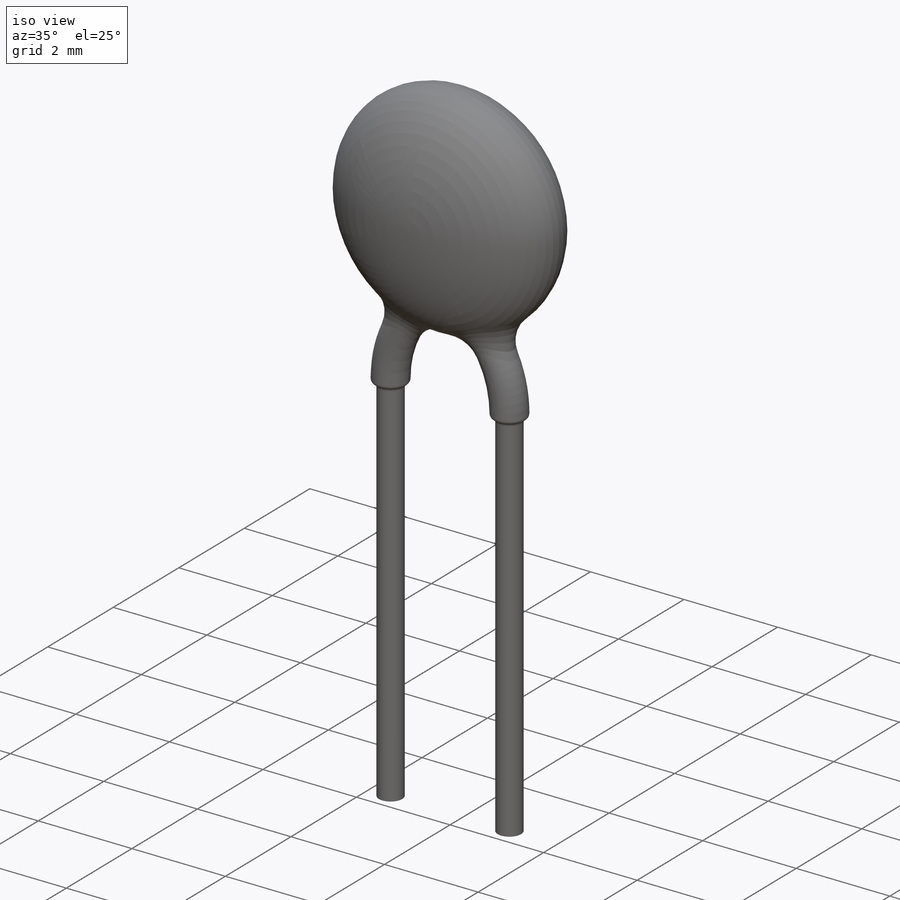
[diagram: iso view]
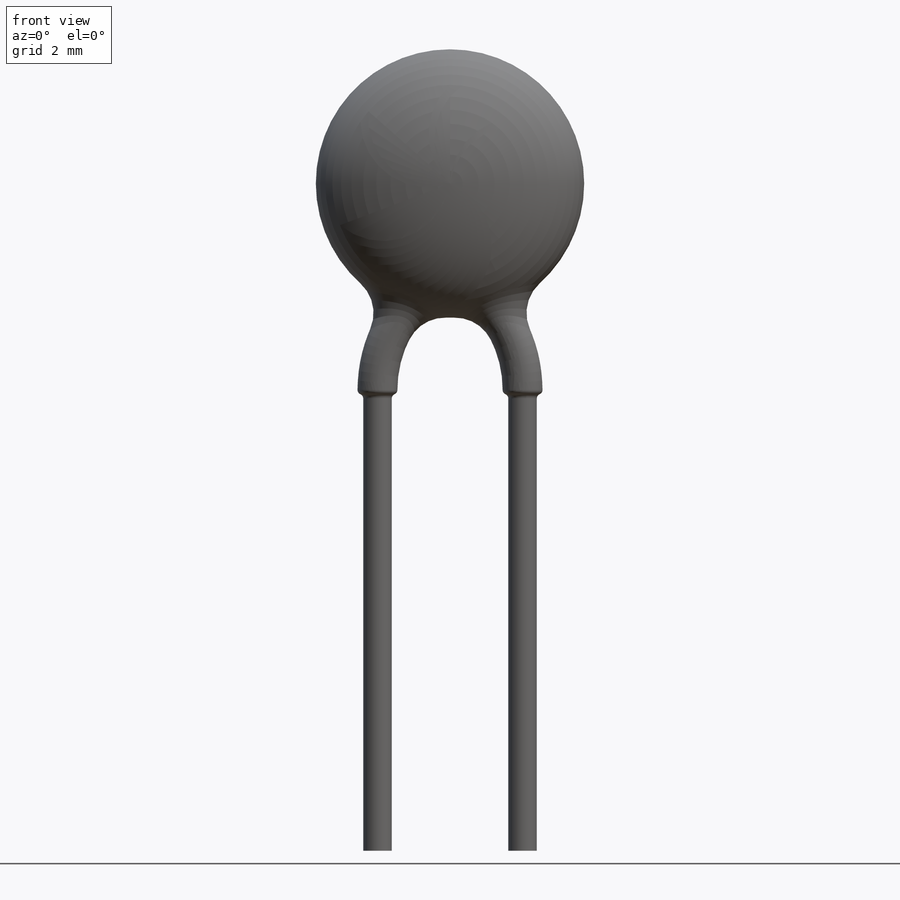
[diagram: front view]
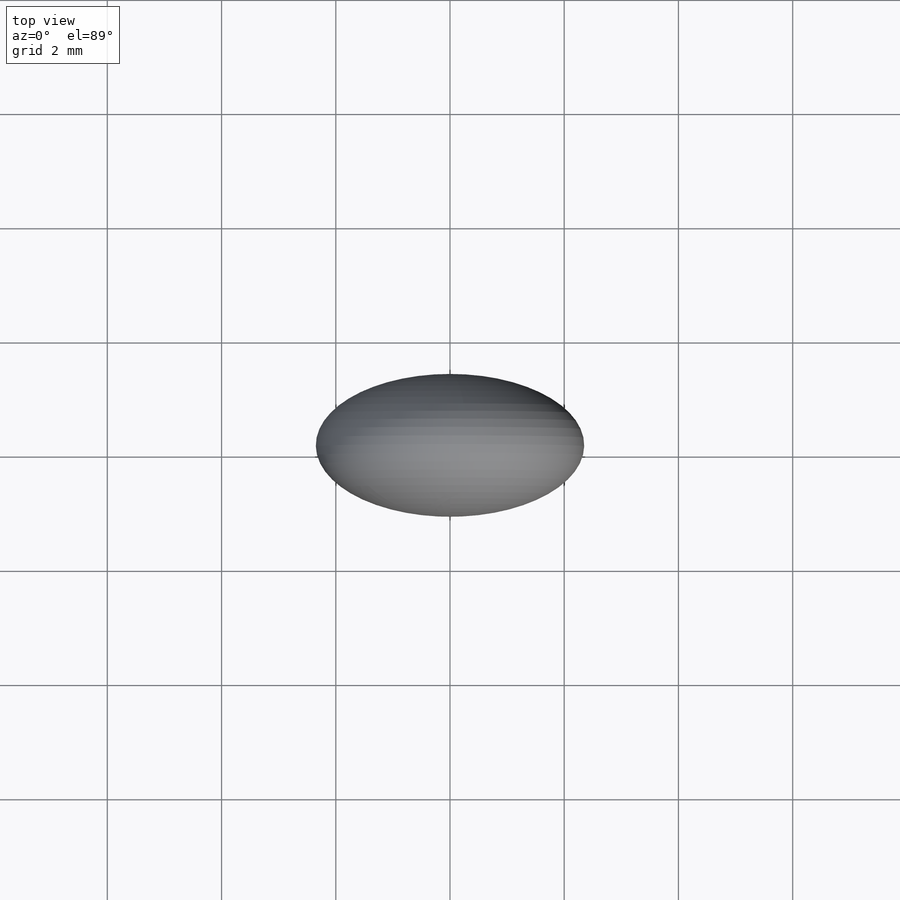
[diagram: top view]
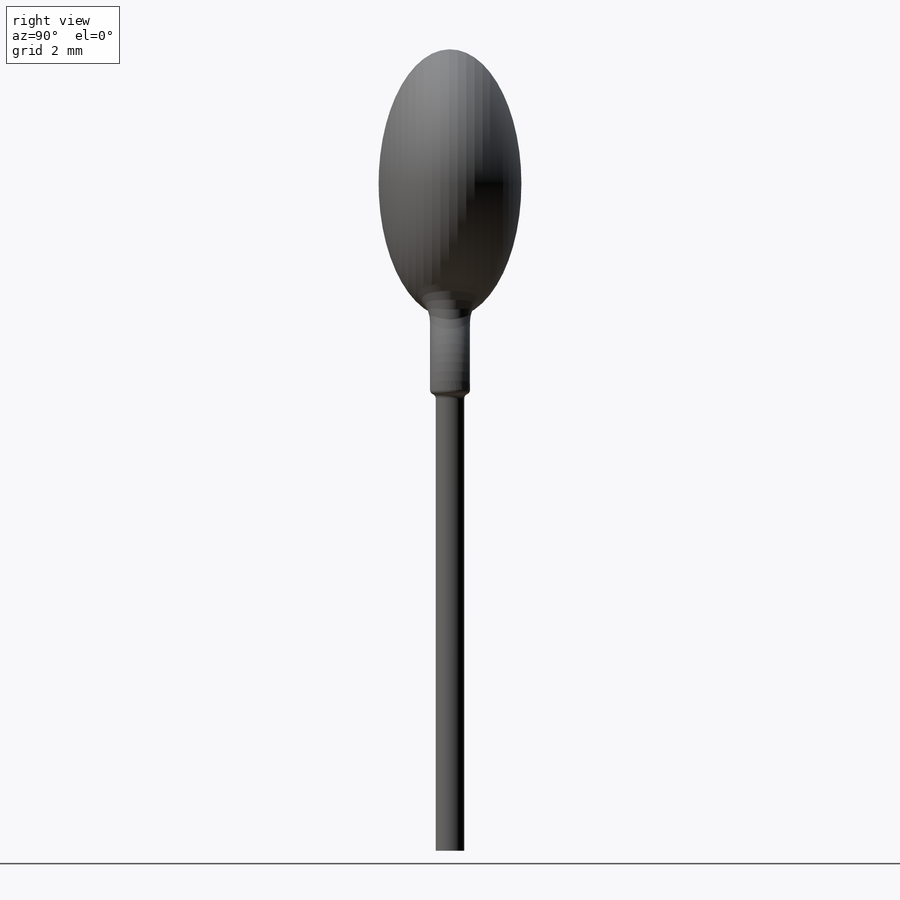
[diagram: right view]
SOLIDWORKS PART (.sldprt)
format: sldprt  version: not decoded by parser v0  size: 407,552 bytes
history: native  units: mm
features: fillet x6, sketch x5, plane x4, mirror x3, sweep x2, material x1, revolve x1 (+9 scaffold rows collapsed)
feature tree (31):
  scaffold x9  (default folders/planes/origin — collapsed)
  material  "Material <nicht festgelegt>"
  plane  "Ebene vorne"
  plane  "Ebene oben"
  plane  "Ebene rechts"
  sketch  "Skizze2"  dims[D1=2.5mm D2=4.7mm]
  revolve  "Rotation2"  Angle=360deg
  sketch  "Skizze3"  dims[D1=2.54mm D2=1.6mm D3=0.35mm]
  plane  "Ebene1"
  sketch  "Skizze4"  dims[D1=0.7mm D2=0.7mm]
  sweep  "Austragung2"
  mirror  "Spiegeln1"
  fillet  "Verrundung2"  Radius=0.7mm
  mirror  "Spiegeln2"
  fillet  "Verrundung3"  Radius=0.7mm
  sketch  "Skizze5"  dims[c1.D2=0.7mm c1.D3=0.8mm c1.D1=2.54mm c1.2.54*3=7.62mm c2.D1=0.8mm c2.D4=2.54mm c2.D5=7.62mm c2.D6=1.2mm c3.D1=8.0mm]
  sketch  "Skizze6"  dims[D1=0.5mm]
  sweep  "Austragung3"
  mirror  "Spiegeln3"
  fillet  "Verrundung4"  Radius=0.08mm
  fillet  "Verrundung5"  Radius=0.08mm
  fillet  "Verrundung6"  Radius=0.08mm
  fillet  "Verrundung7"  Radius=0.08mm
decode coverage: 12 of 17 modeling features carry decoded parameters
note: suppression state not decoded; provenance and decode notes live in map.json
